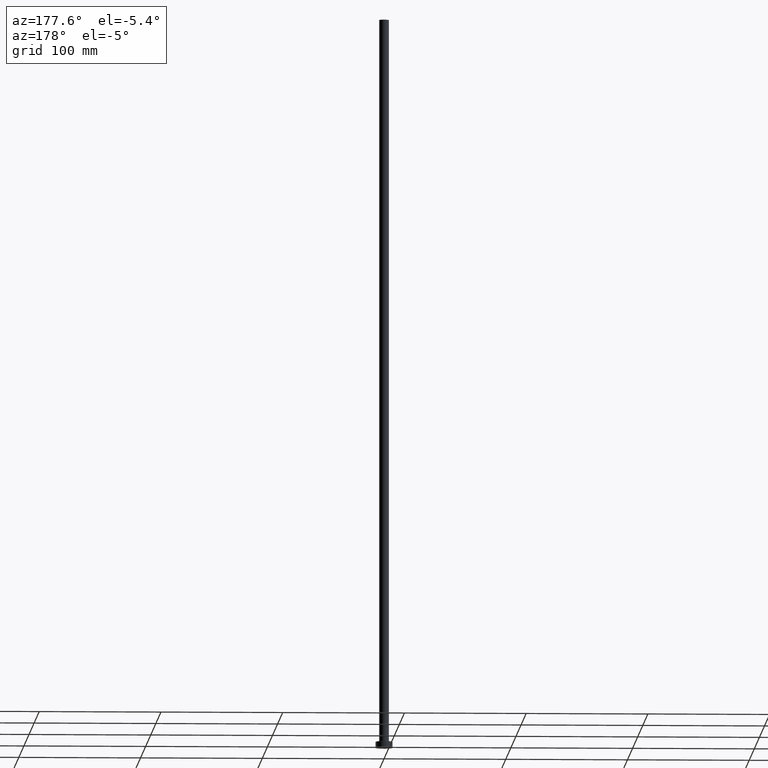
[diagram: clean part render]
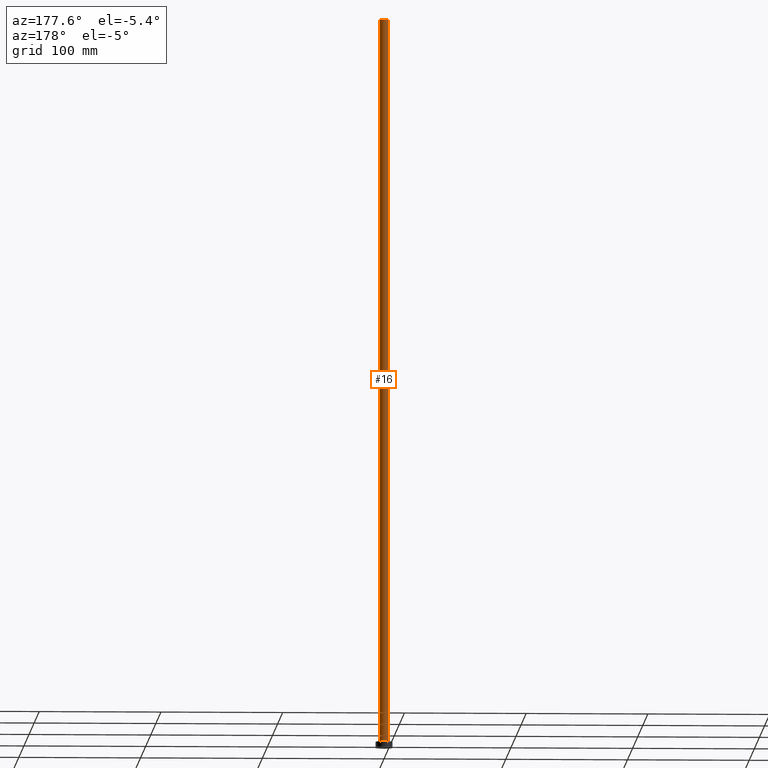
[diagram: same view with one face highlighted and labeled with its STEP entity id]
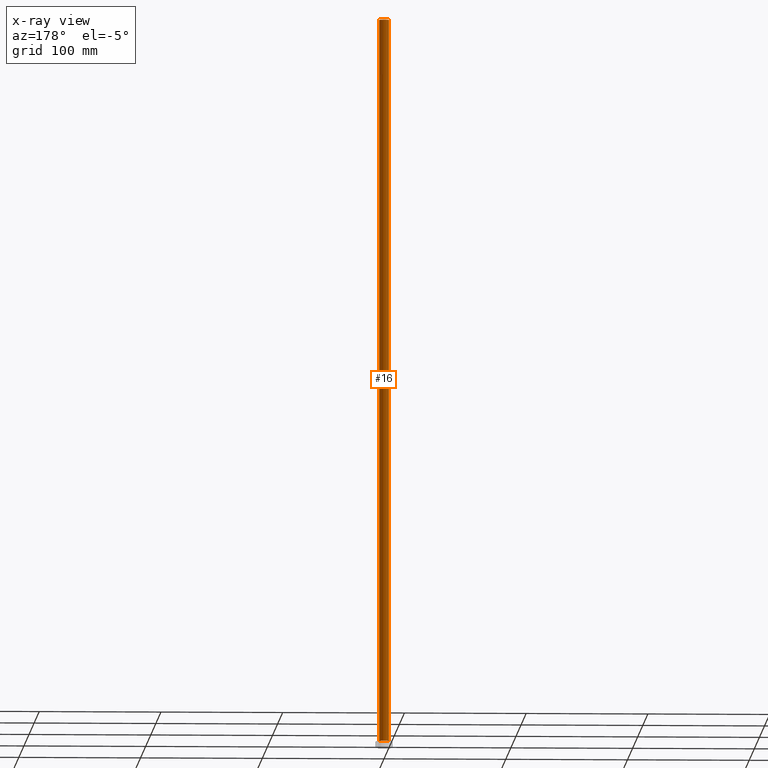
[diagram: x-ray of the same camera — body ghosted, the highlighted face saturated]
A machine part, auxiliary view. The second image highlights one B-rep face of the part: STEP entity #16.
The next image is the same camera in x-ray: the body ghosted, the highlighted face saturated — about 0% of this face is hidden behind the body in this view.
In plain terms, the highlighted cylindrical surface (edge-blend (fillet) strip) has radius 4 mm, axis along (-0, -0, -1).
Its self-contained STEP definition (entity closure, byte-faithful):
#16 = ADVANCED_FACE ( 'NONE', ( #440 ), #124, .T. ) ;
#26 = EDGE_CURVE ( 'NONE', #74, #346, #166, .T. ) ;
#74 = VERTEX_POINT ( 'NONE', #382 ) ;
#79 = AXIS2_PLACEMENT_3D ( 'NONE', #134, #238, #312 ) ;
#86 = LINE ( 'NONE', #441, #425 ) ;
#105 = EDGE_CURVE ( 'NONE', #74, #152, #341, .T. ) ;
#124 = CYLINDRICAL_SURFACE ( 'NONE', #79, 4.000000000000000000 ) ;
#127 = DIRECTION ( 'NONE',  ( -0.000000000000000000, -0.000000000000000000, -1.000000000000000000 ) ) ;
#134 = CARTESIAN_POINT ( 'NONE',  ( 0.000000000000000000, 0.000000000000000000, 600.0000000000000000 ) ) ;
#149 = ORIENTED_EDGE ( 'NONE', *, *, #376, .F. ) ;
#152 = VERTEX_POINT ( 'NONE', #263 ) ;
#166 = LINE ( 'NONE', #195, #398 ) ;
#195 = CARTESIAN_POINT ( 'NONE',  ( 4.000000000000000000, 4.898587196589412829E-16, 600.0000000000000000 ) ) ;
#204 = AXIS2_PLACEMENT_3D ( 'NONE', #289, #248, #395 ) ;
#208 = EDGE_CURVE ( 'NONE', #346, #445, #386, .T. ) ;
#238 = DIRECTION ( 'NONE',  ( -0.000000000000000000, -0.000000000000000000, -1.000000000000000000 ) ) ;
#248 = DIRECTION ( 'NONE',  ( 0.000000000000000000, 0.000000000000000000, 1.000000000000000000 ) ) ;
#263 = CARTESIAN_POINT ( 'NONE',  ( -4.000000000000000000, 0.000000000000000000, 600.0000000000000000 ) ) ;
#289 = CARTESIAN_POINT ( 'NONE',  ( 0.000000000000000000, 0.000000000000000000, 600.0000000000000000 ) ) ;
#301 = DIRECTION ( 'NONE',  ( -0.000000000000000000, -0.000000000000000000, -1.000000000000000000 ) ) ;
#312 = DIRECTION ( 'NONE',  ( -1.000000000000000000, 0.000000000000000000, 0.000000000000000000 ) ) ;
#318 = EDGE_LOOP ( 'NONE', ( #457, #392, #327, #149 ) ) ;
#327 = ORIENTED_EDGE ( 'NONE', *, *, #208, .T. ) ;
#334 = CARTESIAN_POINT ( 'NONE',  ( 0.000000000000000000, 0.000000000000000000, 5.499999999999949374 ) ) ;
#337 = DIRECTION ( 'NONE',  ( 1.000000000000000000, 0.000000000000000000, 0.000000000000000000 ) ) ;
#338 = DIRECTION ( 'NONE',  ( 0.000000000000000000, 0.000000000000000000, 1.000000000000000000 ) ) ;
#339 = CARTESIAN_POINT ( 'NONE',  ( 4.000000000000000000, 4.898587196589412829E-16, 5.499999999999949374 ) ) ;
#341 = CIRCLE ( 'NONE', #204, 4.000000000000000000 ) ;
#346 = VERTEX_POINT ( 'NONE', #339 ) ;
#368 = AXIS2_PLACEMENT_3D ( 'NONE', #334, #338, #337 ) ;
#376 = EDGE_CURVE ( 'NONE', #152, #445, #86, .T. ) ;
#382 = CARTESIAN_POINT ( 'NONE',  ( 4.000000000000000000, 4.898587196589412829E-16, 600.0000000000000000 ) ) ;
#386 = CIRCLE ( 'NONE', #368, 4.000000000000000000 ) ;
#392 = ORIENTED_EDGE ( 'NONE', *, *, #26, .T. ) ;
#395 = DIRECTION ( 'NONE',  ( 1.000000000000000000, 0.000000000000000000, 0.000000000000000000 ) ) ;
#398 = VECTOR ( 'NONE', #127, 1000.000000000000000 ) ;
#409 = CARTESIAN_POINT ( 'NONE',  ( -4.000000000000000000, 0.000000000000000000, 5.499999999999949374 ) ) ;
#425 = VECTOR ( 'NONE', #301, 1000.000000000000000 ) ;
#440 = FACE_OUTER_BOUND ( 'NONE', #318, .T. ) ;
#441 = CARTESIAN_POINT ( 'NONE',  ( -4.000000000000000000, 0.000000000000000000, 600.0000000000000000 ) ) ;
#445 = VERTEX_POINT ( 'NONE', #409 ) ;
#457 = ORIENTED_EDGE ( 'NONE', *, *, #105, .F. ) ;